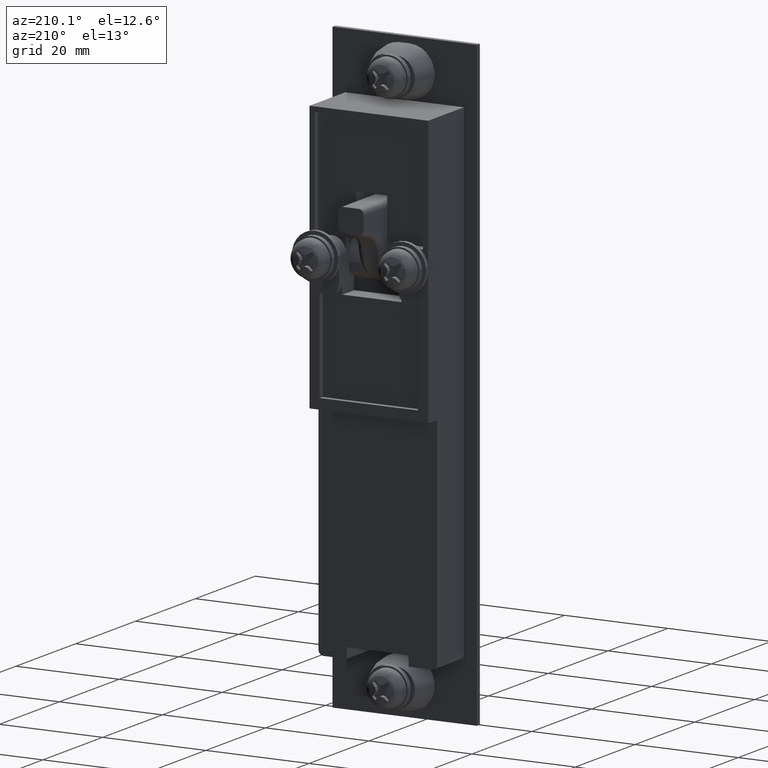
[diagram: clean part render]
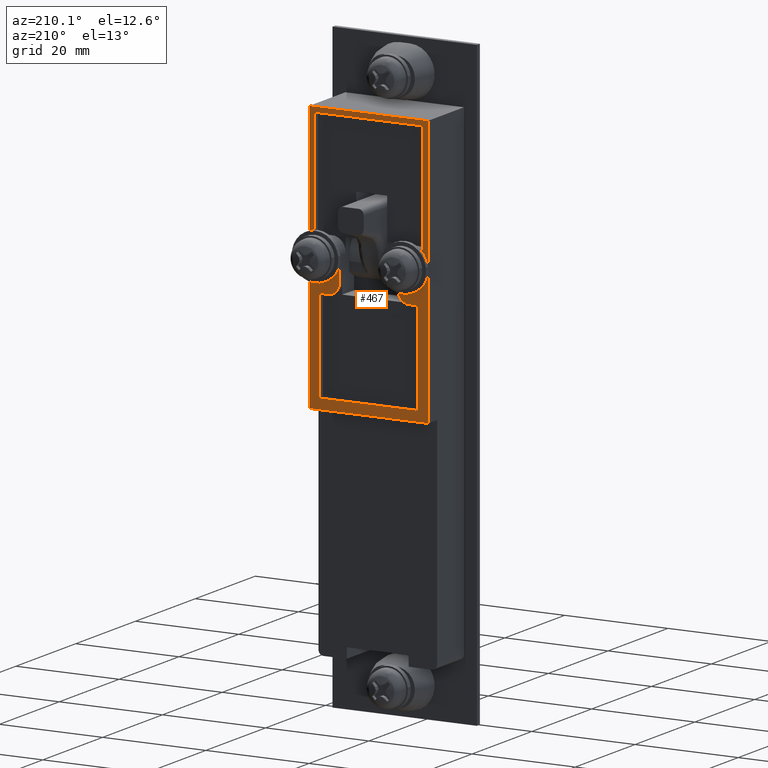
[diagram: same view with one face highlighted and labeled with its STEP entity id]
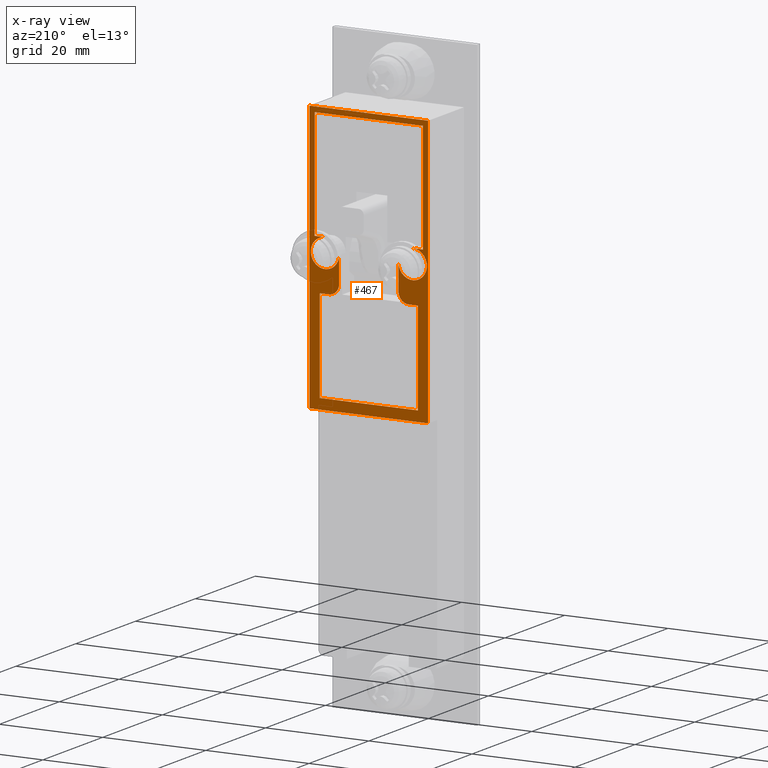
[diagram: x-ray of the same camera — body ghosted, the highlighted face saturated]
A machine part, auxiliary view. The second image highlights one B-rep face of the part: STEP entity #467.
The next image is the same camera in x-ray: the body ghosted, the highlighted face saturated — about 0% of this face is hidden behind the body in this view.
In plain terms, the highlighted planar face has unit normal (0, 1, 0).
Its self-contained STEP definition (entity closure, byte-faithful):
#467=ADVANCED_FACE('',(#2033,#2034),#2032,.T.);
#2032=PLANE('',#4191);
#2033=FACE_OUTER_BOUND('',#4192,.T.);
#2034=FACE_BOUND('',#4193,.T.);
#4188=CARTESIAN_POINT('',(0.00000000000E+00,-1.38000000000E+01,3.01999800000E+01));
#4189=DIRECTION('',(1.00000000000E+00,-0.00000000000E+00,0.00000000000E+00));
#4190=DIRECTION('',(0.00000000000E+00,0.00000000000E+00,-1.00000000000E+00));
#4191=AXIS2_PLACEMENT_3D('',#4188,#4189,#4190);
#4192=EDGE_LOOP('',(#5682,#5683,#5684,#5685));
#4193=EDGE_LOOP('',(#5686,#5687,#5688,#5689,#5690,#5691,#5692,#5693,#5694,#5695,#5696,#5697,#5698,#5699,#5700,#5701,#5702,#5703,#5704));
#5682=ORIENTED_EDGE('',*,*,#6837,.F.);
#5683=ORIENTED_EDGE('',*,*,#6827,.F.);
#5684=ORIENTED_EDGE('',*,*,#6842,.T.);
#5685=ORIENTED_EDGE('',*,*,#6822,.T.);
#5686=ORIENTED_EDGE('',*,*,#6849,.T.);
#5687=ORIENTED_EDGE('',*,*,#6850,.F.);
#5688=ORIENTED_EDGE('',*,*,#6851,.F.);
#5689=ORIENTED_EDGE('',*,*,#6852,.F.);
#5690=ORIENTED_EDGE('',*,*,#6781,.T.);
#5691=ORIENTED_EDGE('',*,*,#6803,.F.);
#5692=ORIENTED_EDGE('',*,*,#6791,.F.);
#5693=ORIENTED_EDGE('',*,*,#6792,.F.);
#5694=ORIENTED_EDGE('',*,*,#6757,.F.);
#5695=ORIENTED_EDGE('',*,*,#6853,.T.);
#5696=ORIENTED_EDGE('',*,*,#6854,.T.);
#5697=ORIENTED_EDGE('',*,*,#6855,.F.);
#5698=ORIENTED_EDGE('',*,*,#6764,.F.);
#5699=ORIENTED_EDGE('',*,*,#6767,.F.);
#5700=ORIENTED_EDGE('',*,*,#6796,.F.);
#5701=ORIENTED_EDGE('',*,*,#6799,.F.);
#5702=ORIENTED_EDGE('',*,*,#6801,.F.);
#5703=ORIENTED_EDGE('',*,*,#6780,.T.);
#5704=ORIENTED_EDGE('',*,*,#6787,.T.);
#6757=EDGE_CURVE('',#9590,#9591,#9592,.T.);
#6764=EDGE_CURVE('',#9633,#9619,#9640,.T.);
#6767=EDGE_CURVE('',#9653,#9633,#9660,.T.);
#6780=EDGE_CURVE('',#9729,#9744,#9751,.T.);
#6781=EDGE_CURVE('',#9757,#9758,#9759,.T.);
#6787=EDGE_CURVE('',#9744,#9792,#9799,.T.);
#6791=EDGE_CURVE('',#9820,#9805,#9827,.T.);
#6792=EDGE_CURVE('',#9591,#9820,#9833,.T.);
#6796=EDGE_CURVE('',#9852,#9653,#9859,.T.);
#6799=EDGE_CURVE('',#9872,#9852,#9879,.T.);
#6801=EDGE_CURVE('',#9729,#9872,#9891,.T.);
#6803=EDGE_CURVE('',#9805,#9758,#9903,.T.);
#6822=EDGE_CURVE('',#10029,#10021,#10030,.T.);
#6827=EDGE_CURVE('',#10056,#10049,#10063,.T.);
#6837=EDGE_CURVE('',#10049,#10021,#10127,.T.);
#6842=EDGE_CURVE('',#10056,#10029,#10160,.T.);
#6849=EDGE_CURVE('',#9792,#10205,#10206,.T.);
#6850=EDGE_CURVE('',#10212,#10205,#10213,.T.);
#6851=EDGE_CURVE('',#10219,#10212,#10220,.T.);
#6852=EDGE_CURVE('',#9757,#10219,#10226,.T.);
#6853=EDGE_CURVE('',#9590,#10232,#10233,.T.);
#6854=EDGE_CURVE('',#10232,#10239,#10240,.T.);
#6855=EDGE_CURVE('',#9619,#10239,#10246,.T.);
#9590=VERTEX_POINT('',#13571);
#9591=VERTEX_POINT('',#13572);
#9592=LINE('',#13573,#13574);
#9619=VERTEX_POINT('',#13588);
#9633=VERTEX_POINT('',#13597);
#9640=CIRCLE('',#13604,2.00000000000E+00);
#9653=VERTEX_POINT('',#13609);
#9660=LINE('',#13613,#13614);
#9729=VERTEX_POINT('',#13661);
#9744=VERTEX_POINT('',#13670);
#9751=LINE('',#13674,#13675);
#9757=VERTEX_POINT('',#13677);
#9758=VERTEX_POINT('',#13678);
#9759=LINE('',#13679,#13680);
#9792=VERTEX_POINT('',#13698);
#9799=CIRCLE('',#13705,2.00000000000E+00);
#9805=VERTEX_POINT('',#13706);
#9820=VERTEX_POINT('',#13715);
#9827=LINE('',#13719,#13720);
#9833=LINE('',#13722,#13723);
#9852=VERTEX_POINT('',#13732);
#9859=LINE('',#13736,#13737);
#9872=VERTEX_POINT('',#13743);
#9879=LINE('',#13747,#13748);
#9891=LINE('',#13753,#13754);
#9903=LINE('',#13759,#13760);
#10021=VERTEX_POINT('',#13823);
#10029=VERTEX_POINT('',#13828);
#10030=LINE('',#13829,#13830);
#10049=VERTEX_POINT('',#13839);
#10056=VERTEX_POINT('',#13843);
#10063=LINE('',#13847,#13848);
#10127=LINE('',#13881,#13882);
#10160=LINE('',#13902,#13903);
#10205=VERTEX_POINT('',#13929);
#10206=LINE('',#13930,#13931);
#10212=VERTEX_POINT('',#13933);
#10213=CIRCLE('',#13937,2.75000000000E+00);
#10219=VERTEX_POINT('',#13938);
#10220=CIRCLE('',#13942,2.75000000000E+00);
#10226=CIRCLE('',#13946,2.75000000000E+00);
#10232=VERTEX_POINT('',#13947);
#10233=CIRCLE('',#13951,2.75000000037E+00);
#10239=VERTEX_POINT('',#13952);
#10240=CIRCLE('',#13956,2.75000000037E+00);
#10246=LINE('',#13957,#13958);
#13571=CARTESIAN_POINT('',(0.00000000000E+00,8.50000000000E+00,2.75000000000E+00));
#13572=CARTESIAN_POINT('',(0.00000000000E+00,1.05000000000E+01,2.75000000000E+00));
#13573=CARTESIAN_POINT('',(0.00000000000E+00,8.50000000000E+00,2.75000000000E+00));
#13574=VECTOR('',#13575,2.00000000000E+00);
#13575=DIRECTION('',(0.00000000000E+00,1.00000000000E+00,0.00000000000E+00));
#13588=CARTESIAN_POINT('',(0.00000000000E+00,5.75000000000E+00,-5.00000000000E+00));
#13597=CARTESIAN_POINT('',(0.00000000000E+00,7.75000000000E+00,-7.00000000000E+00));
#13601=CARTESIAN_POINT('',(0.00000000000E+00,7.75000000000E+00,-5.00000000000E+00));
#13602=DIRECTION('',(-1.00000000000E+00,0.00000000000E+00,0.00000000000E+00));
#13603=DIRECTION('',(-0.00000000000E+00,-4.44089209850E-16,1.00000000000E+00));
#13604=AXIS2_PLACEMENT_3D('',#13601,#13602,#13603);
#13609=CARTESIAN_POINT('',(0.00000000000E+00,9.50000000000E+00,-7.00000000000E+00));
#13613=CARTESIAN_POINT('',(0.00000000000E+00,9.50000000000E+00,-7.00000000000E+00));
#13614=VECTOR('',#13615,1.75000000000E+00);
#13615=DIRECTION('',(0.00000000000E+00,-1.00000000000E+00,0.00000000000E+00));
#13661=CARTESIAN_POINT('',(0.00000000000E+00,-9.50000000000E+00,-7.00000000000E+00));
#13670=CARTESIAN_POINT('',(0.00000000000E+00,-7.75000000000E+00,-7.00000000000E+00));
#13674=CARTESIAN_POINT('',(0.00000000000E+00,-9.50000000000E+00,-7.00000000000E+00));
#13675=VECTOR('',#13676,1.75000000000E+00);
#13676=DIRECTION('',(0.00000000000E+00,1.00000000000E+00,0.00000000000E+00));
#13677=CARTESIAN_POINT('',(0.00000000000E+00,-8.50000000000E+00,2.75000000000E+00));
#13678=CARTESIAN_POINT('',(0.00000000000E+00,-1.05000000000E+01,2.75000000000E+00));
#13679=CARTESIAN_POINT('',(0.00000000000E+00,-8.50000000000E+00,2.75000000000E+00));
#13680=VECTOR('',#13681,2.00000000000E+00);
#13681=DIRECTION('',(0.00000000000E+00,-1.00000000000E+00,0.00000000000E+00));
#13698=CARTESIAN_POINT('',(0.00000000000E+00,-5.75000000000E+00,-5.00000000000E+00));
#13702=CARTESIAN_POINT('',(0.00000000000E+00,-7.75000000000E+00,-5.00000000000E+00));
#13703=DIRECTION('',(1.00000000000E+00,0.00000000000E+00,0.00000000000E+00));
#13704=DIRECTION('',(-0.00000000000E+00,4.44089209850E-16,1.00000000000E+00));
#13705=AXIS2_PLACEMENT_3D('',#13702,#13703,#13704);
#13706=CARTESIAN_POINT('',(0.00000000000E+00,-1.05000000000E+01,2.40000000000E+01));
#13715=CARTESIAN_POINT('',(0.00000000000E+00,1.05000000000E+01,2.40000000000E+01));
#13719=CARTESIAN_POINT('',(0.00000000000E+00,1.05000000000E+01,2.40000000000E+01));
#13720=VECTOR('',#13721,2.10000000000E+01);
#13721=DIRECTION('',(0.00000000000E+00,-1.00000000000E+00,0.00000000000E+00));
#13722=CARTESIAN_POINT('',(0.00000000000E+00,1.05000000000E+01,2.75000000000E+00));
#13723=VECTOR('',#13724,2.12500000000E+01);
#13724=DIRECTION('',(0.00000000000E+00,0.00000000000E+00,1.00000000000E+00));
#13732=CARTESIAN_POINT('',(0.00000000000E+00,9.50000000000E+00,-2.50000000000E+01));
#13736=CARTESIAN_POINT('',(0.00000000000E+00,9.50000000000E+00,-2.50000000000E+01));
#13737=VECTOR('',#13738,1.80000000000E+01);
#13738=DIRECTION('',(0.00000000000E+00,0.00000000000E+00,1.00000000000E+00));
#13743=CARTESIAN_POINT('',(0.00000000000E+00,-9.50000000000E+00,-2.50000000000E+01));
#13747=CARTESIAN_POINT('',(0.00000000000E+00,-9.50000000000E+00,-2.50000000000E+01));
#13748=VECTOR('',#13749,1.90000000000E+01);
#13749=DIRECTION('',(0.00000000000E+00,1.00000000000E+00,0.00000000000E+00));
#13753=CARTESIAN_POINT('',(0.00000000000E+00,-9.50000000000E+00,-7.00000000000E+00));
#13754=VECTOR('',#13755,1.80000000000E+01);
#13755=DIRECTION('',(0.00000000000E+00,0.00000000000E+00,-1.00000000000E+00));
#13759=CARTESIAN_POINT('',(0.00000000000E+00,-1.05000000000E+01,2.40000000000E+01));
#13760=VECTOR('',#13761,2.12500000000E+01);
#13761=DIRECTION('',(0.00000000000E+00,0.00000000000E+00,-1.00000000000E+00));
#13823=CARTESIAN_POINT('',(0.00000000000E+00,-1.15000000000E+01,2.50000000000E+01));
#13828=CARTESIAN_POINT('',(0.00000000000E+00,1.15000000000E+01,2.50000000000E+01));
#13829=CARTESIAN_POINT('',(0.00000000000E+00,1.15000000000E+01,2.50000000000E+01));
#13830=VECTOR('',#13831,2.30000000000E+01);
#13831=DIRECTION('',(0.00000000000E+00,-1.00000000000E+00,0.00000000000E+00));
#13839=CARTESIAN_POINT('',(0.00000000000E+00,-1.15000000000E+01,-2.69998000000E+01));
#13843=CARTESIAN_POINT('',(0.00000000000E+00,1.15000000000E+01,-2.69998000000E+01));
#13847=CARTESIAN_POINT('',(0.00000000000E+00,1.15000000000E+01,-2.69998000000E+01));
#13848=VECTOR('',#13849,2.30000000000E+01);
#13849=DIRECTION('',(0.00000000000E+00,-1.00000000000E+00,0.00000000000E+00));
#13881=CARTESIAN_POINT('',(0.00000000000E+00,-1.15000000000E+01,-2.69998000000E+01));
#13882=VECTOR('',#13883,5.19998000000E+01);
#13883=DIRECTION('',(0.00000000000E+00,0.00000000000E+00,1.00000000000E+00));
#13902=CARTESIAN_POINT('',(0.00000000000E+00,1.15000000000E+01,-2.69998000000E+01));
#13903=VECTOR('',#13904,5.19998000000E+01);
#13904=DIRECTION('',(0.00000000000E+00,0.00000000000E+00,1.00000000000E+00));
#13929=CARTESIAN_POINT('',(0.00000000000E+00,-5.75000000000E+00,-5.20457700000E-16));
#13930=CARTESIAN_POINT('',(0.00000000000E+00,-5.75000000000E+00,-5.00000000000E+00));
#13931=VECTOR('',#13932,5.00000000000E+00);
#13932=DIRECTION('',(0.00000000000E+00,0.00000000000E+00,1.00000000000E+00));
#13933=CARTESIAN_POINT('',(-1.91943411129E-15,-6.64572367641E+00,-2.03080262846E+00));
#13934=CARTESIAN_POINT('',(5.34147548500E-17,-8.50000000000E+00,9.99200722163E-16));
#13935=DIRECTION('',(1.00000000000E+00,-5.97354164068E-17,-1.02600558285E-15));
#13936=DIRECTION('',(1.02600558285E-15,9.57567358739E-16,1.00000000000E+00));
#13937=AXIS2_PLACEMENT_3D('',#13934,#13935,#13936);
#13938=CARTESIAN_POINT('',(2.02596308696E-15,-1.03545778539E+01,2.03052726740E+00));
#13939=CARTESIAN_POINT('',(5.34147548500E-17,-8.50000000000E+00,9.99200722163E-16));
#13940=DIRECTION('',(1.00000000000E+00,-5.97354164068E-17,-1.02600558285E-15));
#13941=DIRECTION('',(1.02600558285E-15,9.57567358739E-16,1.00000000000E+00));
#13942=AXIS2_PLACEMENT_3D('',#13939,#13940,#13941);
#13943=CARTESIAN_POINT('',(5.34147548500E-17,-8.50000000000E+00,9.99200722163E-16));
#13944=DIRECTION('',(1.00000000000E+00,-5.97354164068E-17,-1.02600558285E-15));
#13945=DIRECTION('',(1.02600558285E-15,9.57567358739E-16,1.00000000000E+00));
#13946=AXIS2_PLACEMENT_3D('',#13943,#13944,#13945);
#13947=CARTESIAN_POINT('',(1.80948821890E-16,1.08314043223E+01,-1.45844228121E+00));
#13948=CARTESIAN_POINT('',(1.18240723530E-16,8.49999999965E+00,-3.70901975799E-10));
#13949=DIRECTION('',(-1.00000000000E+00,-1.63657404571E-32,-4.29966267325E-17));
#13950=DIRECTION('',(-4.29966267325E-17,1.26876972211E-10,1.00000000000E+00));
#13951=AXIS2_PLACEMENT_3D('',#13948,#13949,#13950);
#13952=CARTESIAN_POINT('',(0.00000000000E+00,5.75000000000E+00,-5.20457700000E-16));
#13953=CARTESIAN_POINT('',(1.18240723530E-16,8.49999999965E+00,-3.70901975799E-10));
#13954=DIRECTION('',(-1.00000000000E+00,-1.63657404571E-32,-4.29966267325E-17));
#13955=DIRECTION('',(-4.29966267325E-17,1.26876972211E-10,1.00000000000E+00));
#13956=AXIS2_PLACEMENT_3D('',#13953,#13954,#13955);
#13957=CARTESIAN_POINT('',(0.00000000000E+00,5.75000000000E+00,-5.00000000000E+00));
#13958=VECTOR('',#13959,5.00000000000E+00);
#13959=DIRECTION('',(0.00000000000E+00,0.00000000000E+00,1.00000000000E+00));